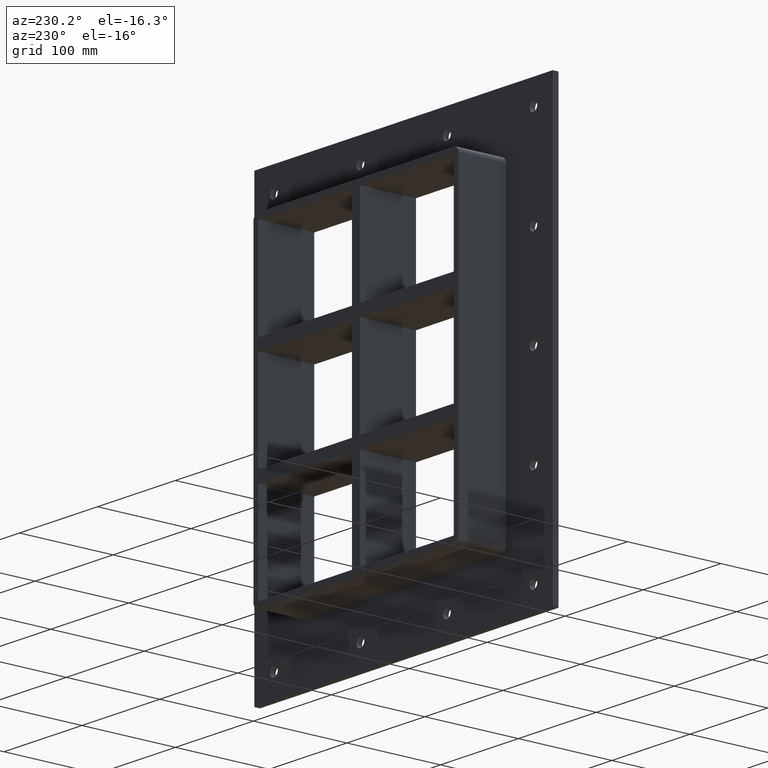
[diagram: clean part render]
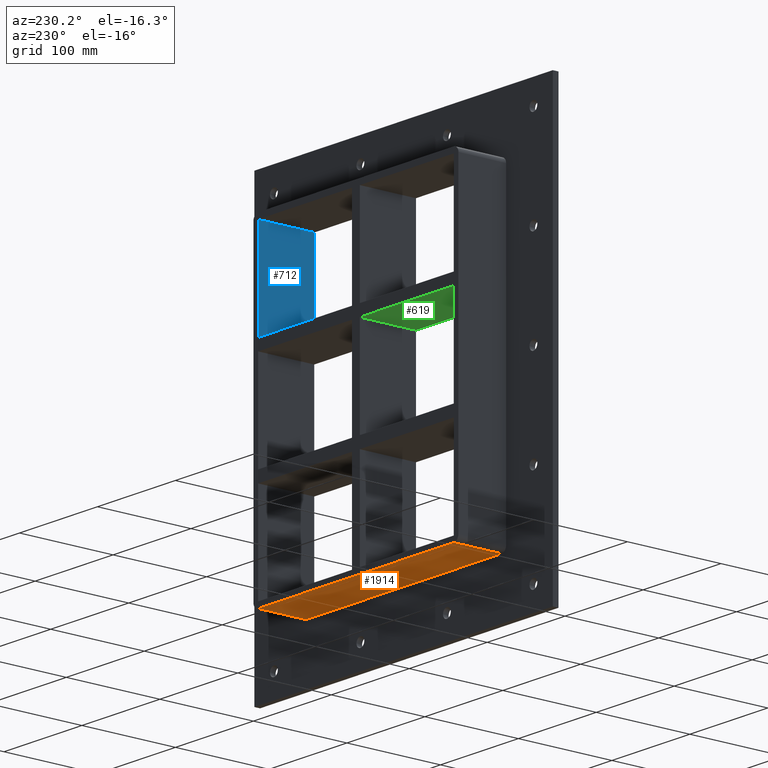
[diagram: same view with three faces highlighted in distinct colors, each labeled with its STEP entity id]
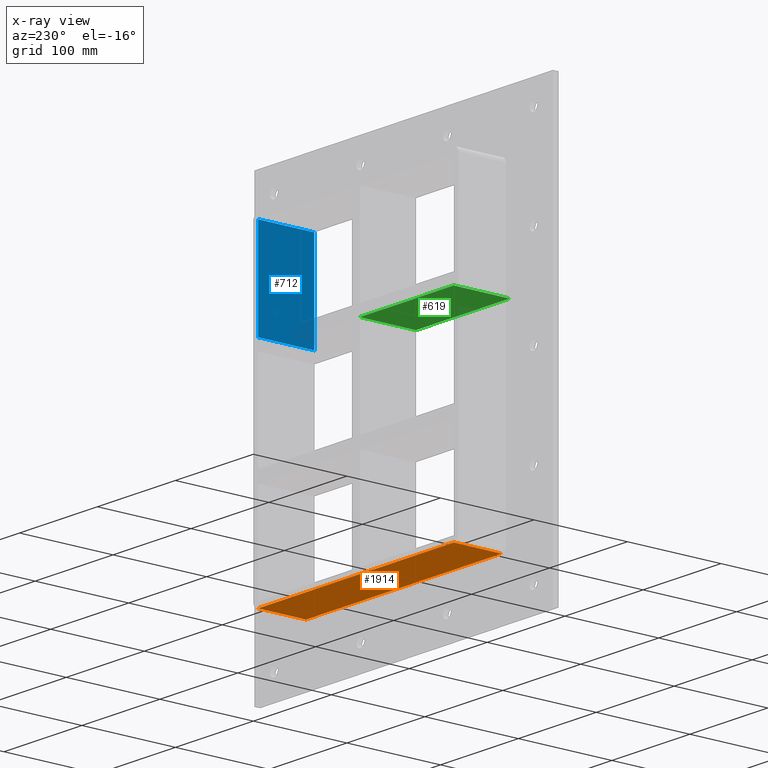
[diagram: x-ray of the same camera — body ghosted, the three highlighted faces saturated]
A machine part, auxiliary view with three faces highlighted in distinct colors.
The next image is the same camera in x-ray (body ghosted, the three faces saturated) — at least one of them is partly hidden behind the body in this view.
Their STEP definitions:

[orange] entity #1914 — the highlighted planar face has unit normal (0, 0, -1).
#1006=CARTESIAN_POINT('',(125.5,57.0,-169.50000000000003));
#1007=VERTEX_POINT('',#1006);
#1017=CARTESIAN_POINT('',(-125.5,57.0,-169.50000000000003));
#1018=VERTEX_POINT('',#1017);
#1019=CARTESIAN_POINT('',(125.50000000000001,57.0,-169.50000000000003));
#1020=DIRECTION('',(-1.0,0.0,0.0));
#1021=VECTOR('',#1020,251.0);
#1022=LINE('',#1019,#1021);
#1023=EDGE_CURVE('',#1007,#1018,#1022,.T.);
#1380=CARTESIAN_POINT('',(-125.5,6.000000000000001,-169.50000000000003));
#1381=VERTEX_POINT('',#1380);
#1391=CARTESIAN_POINT('',(125.5,6.000000000000001,-169.50000000000003));
#1392=VERTEX_POINT('',#1391);
#1393=CARTESIAN_POINT('',(125.50000000000001,6.000000000000001,-169.50000000000003));
#1394=DIRECTION('',(-1.0,0.0,0.0));
#1395=VECTOR('',#1394,251.0);
#1396=LINE('',#1393,#1395);
#1397=EDGE_CURVE('',#1392,#1381,#1396,.T.);
#1838=CARTESIAN_POINT('',(125.5,6.000000000000001,-169.50000000000003));
#1839=DIRECTION('',(0.0,1.0,0.0));
#1840=VECTOR('',#1839,51.0);
#1841=LINE('',#1838,#1840);
#1842=EDGE_CURVE('',#1392,#1007,#1841,.T.);
#1898=CARTESIAN_POINT('',(131.50000000000003,0.0,-169.50000000000003));
#1899=DIRECTION('',(0.0,0.0,-1.0));
#1900=DIRECTION('',(-1.0,0.0,0.0));
#1901=AXIS2_PLACEMENT_3D('',#1898,#1899,#1900);
#1902=PLANE('',#1901);
#1903=ORIENTED_EDGE('',*,*,#1397,.T.);
#1904=CARTESIAN_POINT('',(-125.5,57.0,-169.50000000000003));
#1905=DIRECTION('',(0.0,-1.0,0.0));
#1906=VECTOR('',#1905,51.0);
#1907=LINE('',#1904,#1906);
#1908=EDGE_CURVE('',#1018,#1381,#1907,.T.);
#1909=ORIENTED_EDGE('',*,*,#1908,.F.);
#1910=ORIENTED_EDGE('',*,*,#1023,.F.);
#1911=ORIENTED_EDGE('',*,*,#1842,.F.);
#1912=EDGE_LOOP('',(#1903,#1909,#1910,#1911));
#1913=FACE_OUTER_BOUND('',#1912,.T.);
#1914=ADVANCED_FACE('',(#1913),#1902,.T.);

[blue] entity #712 — the highlighted planar face has unit normal (1, 0, 0).
#515=CARTESIAN_POINT('',(125.49999999999989,-3.0,62.499999999999893));
#516=VERTEX_POINT('',#515);
#523=CARTESIAN_POINT('',(125.49999999999989,57.0,62.499999999999893));
#524=VERTEX_POINT('',#523);
#525=CARTESIAN_POINT('',(125.49999999999997,57.000000000000007,62.499999999999893));
#526=DIRECTION('',(0.0,-1.0,0.0));
#527=VECTOR('',#526,60.000000000000007);
#528=LINE('',#525,#527);
#529=EDGE_CURVE('',#524,#516,#528,.T.);
#682=CARTESIAN_POINT('',(125.49999999999997,0.0,163.50000000000006));
#683=DIRECTION('',(1.0,0.0,0.0));
#684=DIRECTION('',(0.0,0.0,-1.0));
#685=AXIS2_PLACEMENT_3D('',#682,#683,#684);
#686=PLANE('',#685);
#687=ORIENTED_EDGE('',*,*,#529,.T.);
#688=CARTESIAN_POINT('',(125.49999999999997,-3.0,163.5));
#689=VERTEX_POINT('',#688);
#690=CARTESIAN_POINT('',(125.49999999999997,-3.0,163.5));
#691=DIRECTION('',(0.0,0.0,-1.0));
#692=VECTOR('',#691,101.0000000000001);
#693=LINE('',#690,#692);
#694=EDGE_CURVE('',#689,#516,#693,.T.);
#695=ORIENTED_EDGE('',*,*,#694,.F.);
#696=CARTESIAN_POINT('',(125.49999999999997,57.0,163.5));
#697=VERTEX_POINT('',#696);
#698=CARTESIAN_POINT('',(125.49999999999997,-3.0,163.50000000000006));
#699=DIRECTION('',(0.0,1.0,0.0));
#700=VECTOR('',#699,60.0);
#701=LINE('',#698,#700);
#702=EDGE_CURVE('',#689,#697,#701,.T.);
#703=ORIENTED_EDGE('',*,*,#702,.T.);
#704=CARTESIAN_POINT('',(125.49999999999997,57.0,62.499999999999901));
#705=DIRECTION('',(0.0,0.0,1.0));
#706=VECTOR('',#705,101.0000000000001);
#707=LINE('',#704,#706);
#708=EDGE_CURVE('',#524,#697,#707,.T.);
#709=ORIENTED_EDGE('',*,*,#708,.F.);
#710=EDGE_LOOP('',(#687,#695,#703,#709));
#711=FACE_OUTER_BOUND('',#710,.T.);
#712=ADVANCED_FACE('',(#711),#686,.F.);

[green] entity #619 — the highlighted planar face has unit normal (0, 0, -1).
#580=CARTESIAN_POINT('',(125.50000000000182,-3.0,50.499999999990735));
#581=DIRECTION('',(0.0,0.0,-1.0));
#582=DIRECTION('',(-1.0,0.0,0.0));
#583=AXIS2_PLACEMENT_3D('',#580,#581,#582);
#584=PLANE('',#583);
#585=CARTESIAN_POINT('',(-5.000000000001315,-3.0,50.499999999990678));
#586=VERTEX_POINT('',#585);
#587=CARTESIAN_POINT('',(-5.000000000001307,57.0,50.499999999990663));
#588=VERTEX_POINT('',#587);
#589=CARTESIAN_POINT('',(-5.000000000001306,-3.0,50.499999999990671));
#590=DIRECTION('',(0.0,1.0,0.0));
#591=VECTOR('',#590,60.0);
#592=LINE('',#589,#591);
#593=EDGE_CURVE('',#586,#588,#592,.T.);
#594=ORIENTED_EDGE('',*,*,#593,.F.);
#595=CARTESIAN_POINT('',(-125.49999999999966,-3.0,50.499999999990628));
#596=VERTEX_POINT('',#595);
#597=CARTESIAN_POINT('',(-5.000000000001307,-3.0,50.499999999990678));
#598=DIRECTION('',(-1.0,0.0,0.0));
#599=VECTOR('',#598,120.49999999999835);
#600=LINE('',#597,#599);
#601=EDGE_CURVE('',#586,#596,#600,.T.);
#602=ORIENTED_EDGE('',*,*,#601,.T.);
#603=CARTESIAN_POINT('',(-125.49999999999966,57.0,50.499999999990628));
#604=VERTEX_POINT('',#603);
#605=CARTESIAN_POINT('',(-125.49999999999999,57.000000000000007,50.499999999990628));
#606=DIRECTION('',(0.0,-1.0,0.0));
#607=VECTOR('',#606,60.000000000000007);
#608=LINE('',#605,#607);
#609=EDGE_CURVE('',#604,#596,#608,.T.);
#610=ORIENTED_EDGE('',*,*,#609,.F.);
#611=CARTESIAN_POINT('',(-5.000000000001307,57.0,50.499999999990678));
#612=DIRECTION('',(-1.0,0.0,0.0));
#613=VECTOR('',#612,120.49999999999835);
#614=LINE('',#611,#613);
#615=EDGE_CURVE('',#588,#604,#614,.T.);
#616=ORIENTED_EDGE('',*,*,#615,.F.);
#617=EDGE_LOOP('',(#594,#602,#610,#616));
#618=FACE_OUTER_BOUND('',#617,.T.);
#619=ADVANCED_FACE('',(#618),#584,.T.);